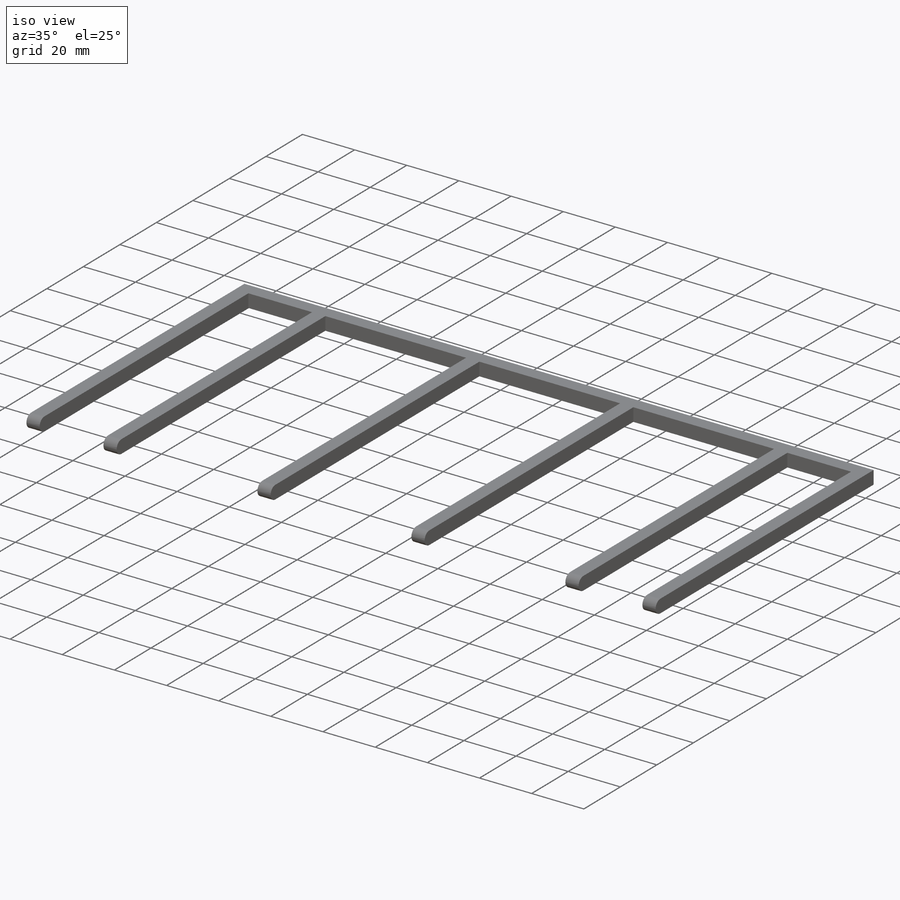
[diagram: iso view]
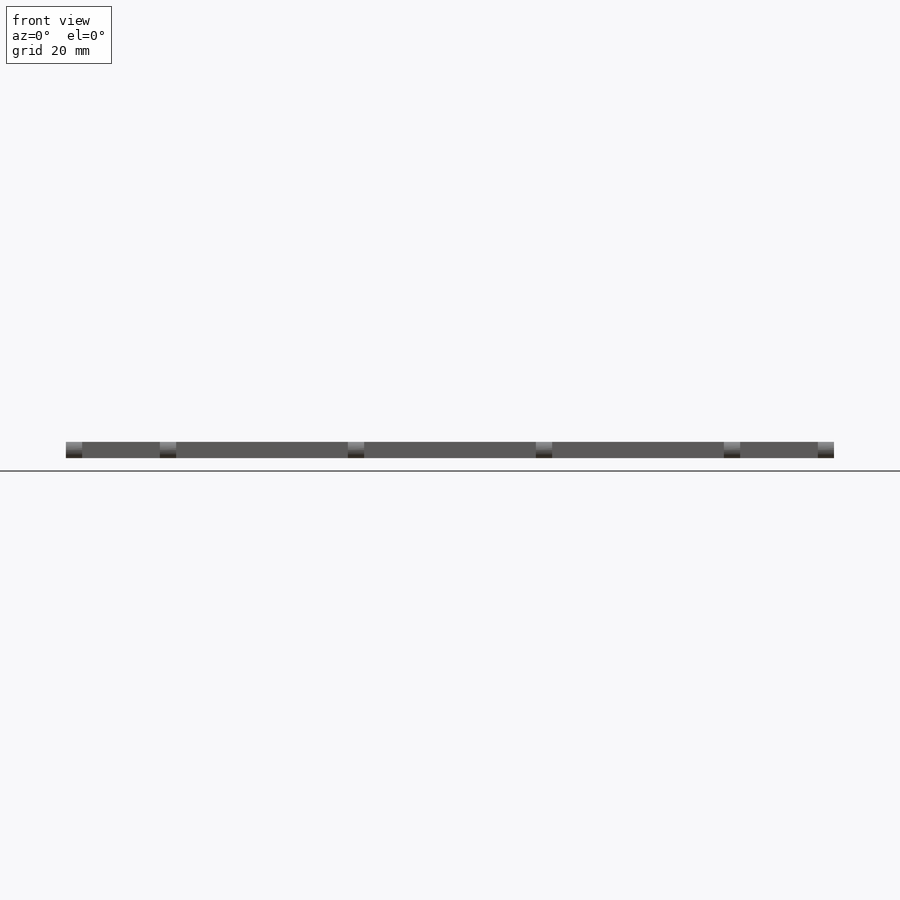
[diagram: front view]
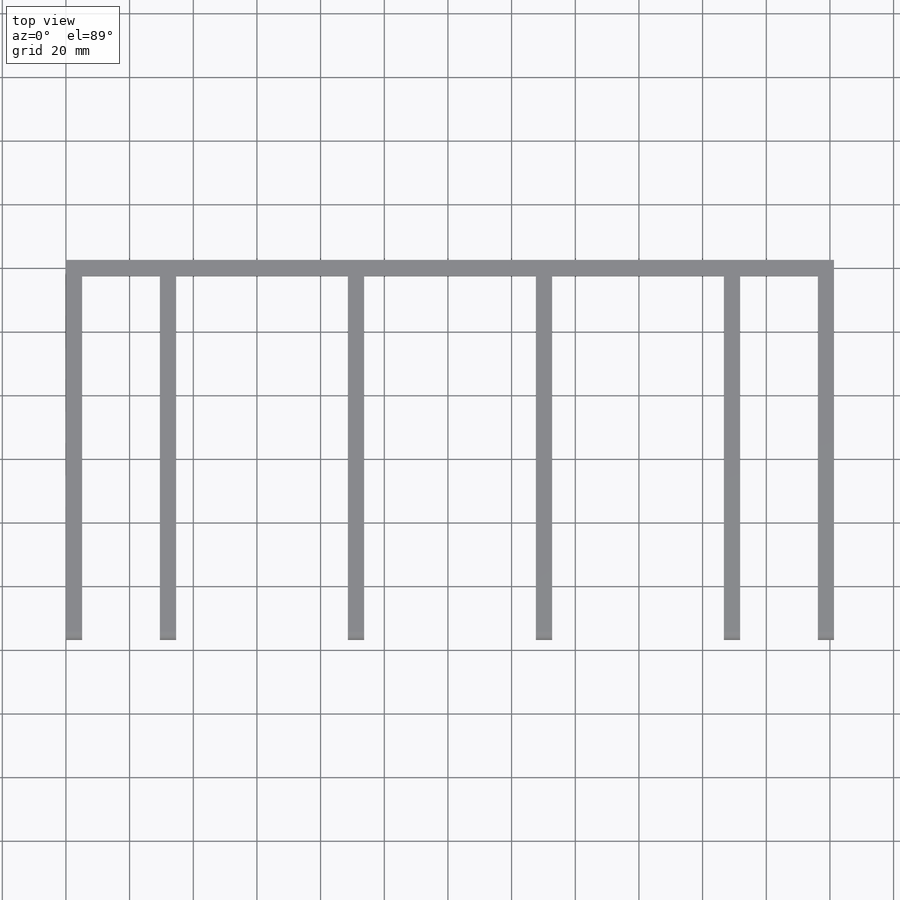
[diagram: top view]
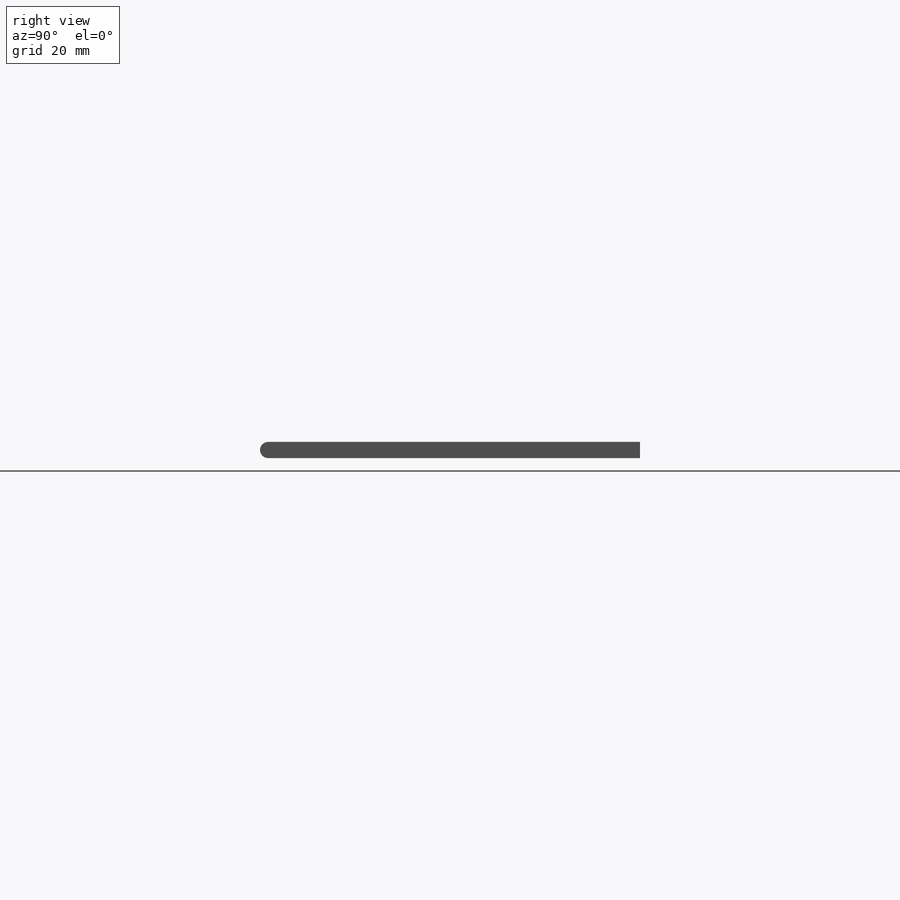
[diagram: right view]
SOLIDWORKS PART (.sldprt)
format: sldprt  version: not decoded by parser v0  size: 186,880 bytes
history: native  units: mm
features: sketch x2, extrude x2, material x1, fillet x1, pattern_linear x1 (+13 scaffold rows collapsed)
feature tree (20):
  scaffold x13  (default folders/planes/origin — collapsed)
  material  "Cast Carbon Steel"
  sketch  "Sketch1"  dims[D1=5.08mm]
  extrude  "Boss-Extrude1"  Depth=241.3mm
  sketch  "Sketch2"
  extrude  "Boss-Extrude2"  Depth=116.84mm
  fillet  "Fillet1"  Radius=2.54mm
  pattern_linear  "LPattern1"  Count1=9 Count2=1 Spacing1=29.5275mm Spacing2=2.54mm
decode coverage: 5 of 6 modeling features carry decoded parameters
note: suppression state not decoded; provenance and decode notes live in map.json
